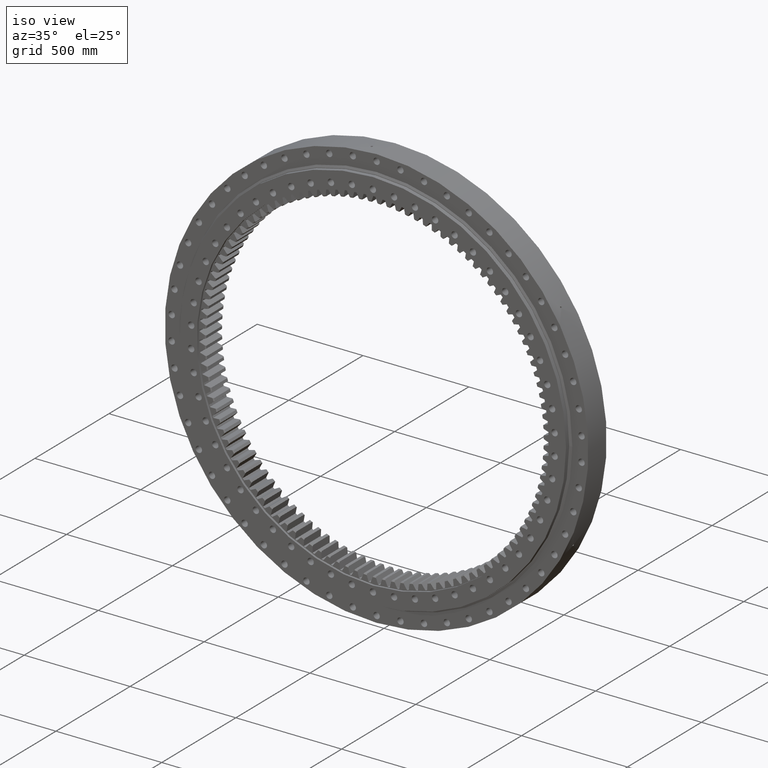
[diagram: clean part render]
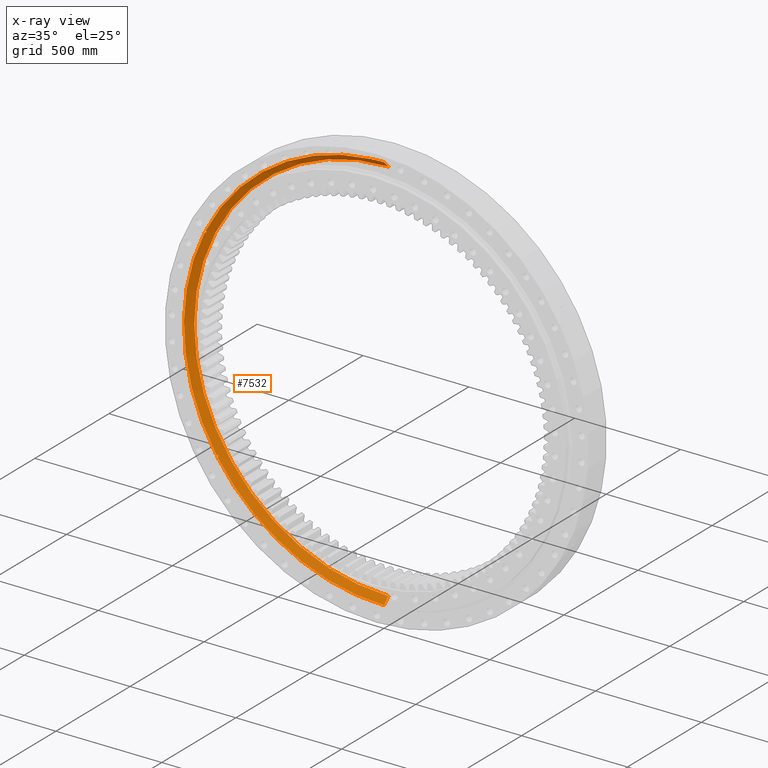
[diagram: x-ray — body ghosted, one internal face saturated and labeled with its STEP entity id]
A machine part, iso view, then the same camera in x-ray: the body is ghosted and one INTERNAL B-rep face — a face not visible from any outside direction — is saturated and labeled: STEP entity #7532.
In plain terms, the highlighted conical surface has half-angle 45 deg.
Its self-contained STEP definition (entity closure, byte-faithful):
#622 = CARTESIAN_POINT ( 'NONE',  ( -788.3514455370460600, 4.242434500541354400, -516.6760801266611900 ) ) ;
#731 = CARTESIAN_POINT ( 'NONE',  ( -786.5896001443550200, 3.381546626899522700, -520.9151389516931700 ) ) ;
#1027 = EDGE_CURVE ( 'NONE', #23381, #23658, #23923, .T. ) ;
#1183 = CARTESIAN_POINT ( 'NONE',  ( -52.07725758804964800, 3.554564166416114300, 941.8265897986447000 ) ) ;
#1619 = DIRECTION ( 'NONE',  ( 5.551115123125782700E-017, -3.495161445111331700E-017, 1.000000000000000000 ) ) ;
#1719 = CARTESIAN_POINT ( 'NONE',  ( -841.7936830436398200, 4.433292511311116800, 423.6457923903273600 ) ) ;
#1835 = CARTESIAN_POINT ( 'NONE',  ( -845.1540721684967800, 2.825469291682863200, 420.5233891742075800 ) ) ;
#2056 = CARTESIAN_POINT ( 'NONE',  ( -58.21801495067638400, 3.019071775043544700, 942.0034609562370600 ) ) ;
#2686 = DIRECTION ( 'NONE',  ( 1.222452380498864700E-016, -0.7071067811865465700, 0.7071067811865485700 ) ) ;
#3274 = CARTESIAN_POINT ( 'NONE',  ( -792.8989786270402600, 0.7071067740544021400, -516.1786974748498600 ) ) ;
#3382 = CARTESIAN_POINT ( 'NONE',  ( -787.7848599382309700, 4.433292511311160300, -517.1918180658963100 ) ) ;
#3507 = CARTESIAN_POINT ( 'NONE',  ( -786.7609739946410600, 2.825469291682844100, -521.6632020226832100 ) ) ;
#3589 = CARTESIAN_POINT ( 'NONE',  ( 5.243681215457027800E-014, 0.7071067811864668600, 946.1126983722081100 ) ) ;
#3974 = CARTESIAN_POINT ( 'NONE',  ( -52.74982545783829800, 4.004894589033563400, 941.3381354673820200 ) ) ;
#4104 = VERTEX_POINT ( 'NONE', #33308 ) ;
#4387 = CARTESIAN_POINT ( 'NONE',  ( -842.7798148625572600, 1.588334650350549100, 428.0008879357426400 ) ) ;
#4499 = FACE_OUTER_BOUND ( 'NONE', #24670, .T. ) ;
#4520 = CARTESIAN_POINT ( 'NONE',  ( -841.9529310191247800, 4.491578921852136500, 423.1994475757894600 ) ) ;
#4628 = CARTESIAN_POINT ( 'NONE',  ( -845.8770896712000000, 2.220631518000919500, 420.4278282392630200 ) ) ;
#4846 = CARTESIAN_POINT ( 'NONE',  ( -58.70304476714166200, 2.425631757804057800, 942.5679432726157100 ) ) ;
#5292 = DIRECTION ( 'NONE',  ( 5.551115123125782700E-017, -3.495161445111331700E-017, 1.000000000000000000 ) ) ;
#5409 = DIRECTION ( 'NONE',  ( 1.173697223544192200E-016, -1.000000000000000000, -3.494217355385783800E-017 ) ) ;
#5452 = CARTESIAN_POINT ( 'NONE',  ( -8.299292658278656600E-017, 0.7071067811864999400, 2.470784786932845900E-017 ) ) ;
#5667 = CIRCLE ( 'NONE', #27379, 946.1126983722081100 ) ;
#6067 = CARTESIAN_POINT ( 'NONE',  ( -792.0495492259274200, 1.588334650350467600, -515.8682854998512500 ) ) ;
#6193 = CARTESIAN_POINT ( 'NONE',  ( -787.4779379777353400, 4.491578921852170200, -517.5529032654363800 ) ) ;
#6303 = CARTESIAN_POINT ( 'NONE',  ( -787.0397245487211000, 2.220631518000865800, -522.3371340148771700 ) ) ;
#6644 = CARTESIAN_POINT ( 'NONE',  ( -50.57437559205796200, 0.7071067740545505800, 944.7600068631766100 ) ) ;
#6765 = CARTESIAN_POINT ( 'NONE',  ( -53.56002205403351000, 4.336157601730970000, 940.9605953438482400 ) ) ;
#7183 = CARTESIAN_POINT ( 'NONE',  ( -842.2279755009050200, 2.429004186097050200, 427.2306665963374100 ) ) ;
#7289 = CARTESIAN_POINT ( 'NONE',  ( -842.2276890863914800, 4.500182801229604100, 422.6332801871684500 ) ) ;
#7406 = CARTESIAN_POINT ( 'NONE',  ( -846.5738449810061200, 1.588185285283509200, 420.4468395707988300 ) ) ;
#7532 = ADVANCED_FACE ( 'NONE', ( #4499 ), #31948, .F. ) ;
#7603 = ORIENTED_EDGE ( 'NONE', *, *, #31084, .F. ) ;
#7624 = CARTESIAN_POINT ( 'NONE',  ( -59.07050953542872000, 1.801915122402393000, 943.1699200768581500 ) ) ;
#7668 = ORIENTED_EDGE ( 'NONE', *, *, #12828, .T. ) ;
#8044 = CARTESIAN_POINT ( 'NONE',  ( -56.03650281589644100, 4.337367784174946700, 940.8151501373440600 ) ) ;
#8301 = CARTESIAN_POINT ( 'NONE',  ( -843.4733542191015700, 0.7071067740544851900, 428.5813093883285800 ) ) ;
#8489 = CARTESIAN_POINT ( 'NONE',  ( -8.299292658278656600E-017, 0.7071067811864999400, 2.470784786932845900E-017 ) ) ;
#8719 = CIRCLE ( 'NONE', #27645, 946.1126983722081100 ) ;
#8804 = ORIENTED_EDGE ( 'NONE', *, *, #31426, .T. ) ;
#8852 = CARTESIAN_POINT ( 'NONE',  ( -791.1065982986394800, 2.429004186096974200, -515.7754892635547300 ) ) ;
#8966 = CARTESIAN_POINT ( 'NONE',  ( -787.1250016700290600, 4.500182801229645900, -518.0739344258945500 ) ) ;
#9083 = CARTESIAN_POINT ( 'NONE',  ( -787.4045664996937100, 1.588185285283439500, -522.9310361476228800 ) ) ;
#9460 = LINE ( 'NONE', #13643, #11155 ) ;
#9532 = CARTESIAN_POINT ( 'NONE',  ( -54.16420015922302900, 4.458422551205584800, 940.8035073108967500 ) ) ;
#9814 = EDGE_CURVE ( 'NONE', #4104, #29278, #8719, .T. ) ;
#9945 = CARTESIAN_POINT ( 'NONE',  ( -841.9044179888892400, 3.017700945961482100, 426.5669893576380200 ) ) ;
#10068 = CARTESIAN_POINT ( 'NONE',  ( -842.7880716921598600, 4.337367784174843700, 421.8785400908655000 ) ) ;
#10186 = CARTESIAN_POINT ( 'NONE',  ( -847.2470942377898400, 0.9303315634363801300, 420.5701591198013600 ) ) ;
#10210 = CIRCLE ( 'NONE', #16514, 917.2499999999998900 ) ;
#10248 = ORIENTED_EDGE ( 'NONE', *, *, #17793, .T. ) ;
#10393 = CARTESIAN_POINT ( 'NONE',  ( -59.33360321566827600, 1.152582910224052800, 943.8040175094956800 ) ) ;
#10597 = CARTESIAN_POINT ( 'NONE',  ( -8.299292658278656600E-017, 0.7071067811864999400, 2.470784786932845900E-017 ) ) ;
#10907 = CARTESIAN_POINT ( 'NONE',  ( -3.470599820928204600E-015, 29.56980515339465000, 1.033233263623675800E-015 ) ) ;
#11018 = DIRECTION ( 'NONE',  ( 1.173697223544192200E-016, -1.000000000000000000, -3.494217355385783800E-017 ) ) ;
#11132 = CARTESIAN_POINT ( 'NONE',  ( -8.299292658278656600E-017, 0.7071067811864999400, 2.470784786932845900E-017 ) ) ;
#11155 = VECTOR ( 'NONE', #2686, 1000.000000000000000 ) ;
#11177 = ORIENTED_EDGE ( 'NONE', *, *, #29727, .T. ) ;
#11234 = DIRECTION ( 'NONE',  ( 5.551115123125782700E-017, -3.495161445111331700E-017, 1.000000000000000000 ) ) ;
#11589 = CARTESIAN_POINT ( 'NONE',  ( -790.3700581940044000, 3.017700945961491400, -515.8271188579135500 ) ) ;
#11719 = CARTESIAN_POINT ( 'NONE',  ( -786.7515688762598500, 4.337367784174885400, -518.9366100464802700 ) ) ;
#11846 = CARTESIAN_POINT ( 'NONE',  ( -787.8479889903047700, 0.9303315634362920900, -523.4524273325753300 ) ) ;
#12004 = EDGE_CURVE ( 'NONE', #23502, #15637, #5667, .T. ) ;
#12168 = CARTESIAN_POINT ( 'NONE',  ( -51.00887076943260500, 2.220959040796031600, 943.2205924788380600 ) ) ;
#12295 = CARTESIAN_POINT ( 'NONE',  ( -54.63126275232109200, 4.499907430203514900, 940.7349464934543400 ) ) ;
#12310 = DIRECTION ( 'NONE',  ( 5.551115123125782700E-017, -3.495161445111331700E-017, 1.000000000000000000 ) ) ;
#12701 = CARTESIAN_POINT ( 'NONE',  ( -841.6843815193180900, 3.554564166416004600, 425.8130668686437200 ) ) ;
#12805 = CARTESIAN_POINT ( 'NONE',  ( -843.4562366129353000, 4.006216373964449000, 421.2826994132009900 ) ) ;
#12828 = EDGE_CURVE ( 'NONE', #28518, #23658, #27039, .T. ) ;
#13022 = CARTESIAN_POINT ( 'NONE',  ( -56.33409009353195500, 4.241889583455376000, 940.8930172620512200 ) ) ;
#13146 = CARTESIAN_POINT ( 'NONE',  ( -59.44753258883900300, 0.7071067740545642400, 944.2432043195942700 ) ) ;
#13538 = B_SPLINE_CURVE_WITH_KNOTS ( 'NONE', 3,
 ( #3274, #19721, #6067, #25198, #8852, #27972, #11589, #30764, #14338, #33523, #17108, #622, #19841, #3382, #22615, #6193, #25314, #8966, #28094, #11719, #30874, #14452, #33655, #17223, #731, #19968, #3507, #22718, #6303, #25440, #9083, #28217, #11846, #30994 ),
 .UNSPECIFIED., .F., .F.,
 ( 4, 2, 2, 2, 2, 2, 2, 2, 2, 2, 2, 2, 2, 2, 2, 2, 4 ),
 ( 2.819181157725439300E-007, 0.001887956942167627600, 0.002831794454193555500, 0.003775631966219482700, 0.004719469478245409900, 0.005663306990271337900, 0.006607144502297265100, 0.007079063258309999300, 0.007550982014322734300, 0.008494819526348482800, 0.009438657038374230500, 0.01038249455039998000, 0.01132633206242572600, 0.01227016957445147500, 0.01321400708647722500, 0.01415784459850297000, 0.01510168211052871800 ),
 .UNSPECIFIED. ) ;
#13643 = CARTESIAN_POINT ( 'NONE',  ( 5.243681215457027800E-014, 0.7071067811864668600, 946.1126983722081100 ) ) ;
#13649 = DIRECTION ( 'NONE',  ( 5.551115123125782700E-017, -3.404199789324887300E-017, 1.000000000000000000 ) ) ;
#14338 = CARTESIAN_POINT ( 'NONE',  ( -789.6071239312650500, 3.554564166416029000, -516.0135229300029800 ) ) ;
#14452 = CARTESIAN_POINT ( 'NONE',  ( -786.5696381731822800, 4.006216373964497800, -519.8131781806217800 ) ) ;
#14792 = CARTESIAN_POINT ( 'NONE',  ( -50.61934310020063800, 1.153477579637105300, 944.3105897753351900 ) ) ;
#14907 = CARTESIAN_POINT ( 'NONE',  ( -51.38393896682256900, 2.826721079945987600, 942.5935782933198700 ) ) ;
#15332 = CARTESIAN_POINT ( 'NONE',  ( -843.1066313582073200, 1.153477579637018200, 428.3176578400111800 ) ) ;
#15436 = CARTESIAN_POINT ( 'NONE',  ( -841.5976515947503500, 4.004894589033487100, 424.9863788420060500 ) ) ;
#15448 = CARTESIAN_POINT ( 'NONE',  ( -1.680323095672823500E-013, 29.56980515339467900, -917.2499999999998900 ) ) ;
#15557 = CARTESIAN_POINT ( 'NONE',  ( -844.1776030592209300, 3.551892162688689700, 420.8545854100087800 ) ) ;
#15637 = VERTEX_POINT ( 'NONE', #8301 ) ;
#15791 = CARTESIAN_POINT ( 'NONE',  ( -57.14421389644606100, 3.865548752889614600, 941.2211856793211400 ) ) ;
#15852 = CARTESIAN_POINT ( 'NONE',  ( -1.684681867771548600E-013, 0.7071067811865330300, -946.1126983722081100 ) ) ;
#16514 = AXIS2_PLACEMENT_3D ( 'NONE', #10907, #30055, #13649 ) ;
#17051 = DIRECTION ( 'NONE',  ( -4.285499050785186000E-017, -0.7071067811865465700, -0.7071067811865485700 ) ) ;
#17108 = CARTESIAN_POINT ( 'NONE',  ( -788.8478261369086800, 4.004894589033510100, -516.3517566253779000 ) ) ;
#17223 = CARTESIAN_POINT ( 'NONE',  ( -786.5595637938446300, 3.551892162688729200, -520.6519568501388400 ) ) ;
#17519 = VECTOR ( 'NONE', #17051, 1000.000000000000000 ) ;
#17681 = CARTESIAN_POINT ( 'NONE',  ( -51.88013185167413600, 3.381138333320751400, 942.0111482900624700 ) ) ;
#17701 = CARTESIAN_POINT ( 'NONE',  ( -788.0148359971669800, 0.7071067740544281200, -523.6046755740387700 ) ) ;
#17793 = EDGE_CURVE ( 'NONE', #21047, #23216, #31983, .T. ) ;
#18038 = AXIS2_PLACEMENT_3D ( 'NONE', #11132, #11018, #12310 ) ;
#18080 = CARTESIAN_POINT ( 'NONE',  ( 4.744700364594303100E-014, 29.56980515339461800, 917.2499999999998900 ) ) ;
#18200 = CARTESIAN_POINT ( 'NONE',  ( -841.6757905549193300, 4.336157601730895400, 424.0959579458743200 ) ) ;
#18317 = CARTESIAN_POINT ( 'NONE',  ( -844.9079351163031800, 3.019071775043461200, 420.5834505729285400 ) ) ;
#18422 = EDGE_CURVE ( 'NONE', #23216, #23502, #20454, .T. ) ;
#18532 = CARTESIAN_POINT ( 'NONE',  ( -57.83094347588519200, 3.381546626899605700, 941.6641455535020700 ) ) ;
#19623 = CARTESIAN_POINT ( 'NONE',  ( -1.684681867771548600E-013, 0.7071067811865330300, -946.1126983722081100 ) ) ;
#19721 = CARTESIAN_POINT ( 'NONE',  ( -792.4872882580031000, 1.153477579636984100, -515.9929319353256000 ) ) ;
#19841 = CARTESIAN_POINT ( 'NONE',  ( -788.1157685008828400, 4.336157601730941600, -516.8646373979754600 ) ) ;
#19968 = CARTESIAN_POINT ( 'NONE',  ( -786.6899201656234500, 3.019071775043453700, -521.4200103833104500 ) ) ;
#20370 = CARTESIAN_POINT ( 'NONE',  ( -50.57437559205796200, 0.7071067740545505800, 944.7600068631766100 ) ) ;
#20422 = CARTESIAN_POINT ( 'NONE',  ( -52.51166451231129200, 3.865632092701798900, 941.4909180327418900 ) ) ;
#20454 = B_SPLINE_CURVE_WITH_KNOTS ( 'NONE', 3,
 ( #6644, #14792, #28556, #12168, #31329, #14907, #34121, #17681, #1183, #20422, #3974, #23180, #6765, #25901, #9532, #28676, #12295, #31444, #28899, #8044, #13022, #32171, #15791, #34994, #18532, #2056, #21274, #4846, #24018, #7624, #26776, #10393, #29546, #13146 ),
 .UNSPECIFIED., .F., .F.,
 ( 4, 2, 2, 2, 2, 2, 2, 2, 2, 2, 2, 2, 2, 2, 2, 2, 4 ),
 ( 2.819181157785080000E-007, 0.001887956942167267300, 0.002831794454193014300, 0.003775631966218761000, 0.004719469478244507800, 0.005663306990270253700, 0.006607144502296001400, 0.007079063258308917700, 0.007550982014321834000, 0.008494819526347667500, 0.009438657038373496700, 0.01038249455039932800, 0.01132633206242515700, 0.01227016957445098800, 0.01321400708647681700, 0.01415784459850264600, 0.01510168211052847700 ),
 .UNSPECIFIED. ) ;
#20713 = CARTESIAN_POINT ( 'NONE',  ( -843.4733542191015700, 0.7071067740544851900, 428.5813093883285800 ) ) ;
#20938 = CARTESIAN_POINT ( 'NONE',  ( -841.8418373803479000, 4.458422551205516400, 423.4941803418940900 ) ) ;
#21047 = VERTEX_POINT ( 'NONE', #3589 ) ;
#21049 = CARTESIAN_POINT ( 'NONE',  ( -845.6393060505063200, 2.425631757804006700, 420.4456435884660000 ) ) ;
#21274 = CARTESIAN_POINT ( 'NONE',  ( -58.39309817385262100, 2.825469291682917800, 942.1865911968889100 ) ) ;
#22615 = CARTESIAN_POINT ( 'NONE',  ( -787.6776372211215900, 4.458422551205542200, -517.3093269690042500 ) ) ;
#22718 = CARTESIAN_POINT ( 'NONE',  ( -786.9362612833613200, 2.425631757803974300, -522.1222996841513600 ) ) ;
#23180 = CARTESIAN_POINT ( 'NONE',  ( -53.27888814892541800, 4.242434500541401500, 941.0704190085974700 ) ) ;
#23216 = VERTEX_POINT ( 'NONE', #20370 ) ;
#23381 = VERTEX_POINT ( 'NONE', #15448 ) ;
#23502 = VERTEX_POINT ( 'NONE', #24295 ) ;
#23543 = ORIENTED_EDGE ( 'NONE', *, *, #9814, .T. ) ;
#23571 = EDGE_CURVE ( 'NONE', #25469, #21047, #9460, .T. ) ;
#23575 = CARTESIAN_POINT ( 'NONE',  ( -842.3574298440007600, 2.220959040795967600, 427.4353183347311600 ) ) ;
#23658 = VERTEX_POINT ( 'NONE', #19623 ) ;
#23695 = CARTESIAN_POINT ( 'NONE',  ( -842.0159932672876300, 4.499907430203443900, 423.0554118623925300 ) ) ;
#23817 = CARTESIAN_POINT ( 'NONE',  ( -846.3443656396132200, 1.801915122402329800, 420.4283981662550200 ) ) ;
#23923 = LINE ( 'NONE', #15852, #17519 ) ;
#24018 = CARTESIAN_POINT ( 'NONE',  ( -58.83736512247555300, 2.220631518000983900, 942.7649622541386000 ) ) ;
#24295 = CARTESIAN_POINT ( 'NONE',  ( -59.44753258883900300, 0.7071067740545642400, 944.2432043195942700 ) ) ;
#24510 = ORIENTED_EDGE ( 'NONE', *, *, #12004, .T. ) ;
#24670 = EDGE_LOOP ( 'NONE', ( #29466, #7603, #32671, #10248, #28381, #24510, #8804, #23543, #11177, #7668 ) ) ;
#25198 = CARTESIAN_POINT ( 'NONE',  ( -791.3485590745649500, 2.220959040795898800, -515.7852741441088300 ) ) ;
#25314 = CARTESIAN_POINT ( 'NONE',  ( -787.3847305149630500, 4.499907430203484700, -517.6795346310635800 ) ) ;
#25440 = CARTESIAN_POINT ( 'NONE',  ( -787.2738561041812800, 1.801915122402264000, -522.7415219106051200 ) ) ;
#25469 = VERTEX_POINT ( 'NONE', #18080 ) ;
#25901 = CARTESIAN_POINT ( 'NONE',  ( -54.00882310540609400, 4.433292511311190500, 940.8376104562219100 ) ) ;
#26269 = B_SPLINE_CURVE_WITH_KNOTS ( 'NONE', 3,
 ( #20713, #15332, #4387, #23575, #7183, #26326, #9945, #29092, #12701, #31844, #15436, #34649, #18200, #1719, #20938, #4520, #23695, #7289, #26433, #10068, #29206, #12805, #31964, #15557, #34758, #18317, #1835, #21049, #4628, #23817, #7406, #26535, #10186, #29326 ),
 .UNSPECIFIED., .F., .F.,
 ( 4, 2, 2, 2, 2, 2, 2, 2, 2, 2, 2, 2, 2, 2, 2, 2, 4 ),
 ( 2.819181158761699400E-007, 0.001887956942167491300, 0.002831794454193372500, 0.003775631966219252800, 0.004719469478245133200, 0.005663306990271015300, 0.006607144502296896500, 0.007079063258309837100, 0.007550982014322778600, 0.008494819526348510600, 0.009438657038374242600, 0.01038249455039997500, 0.01132633206242570800, 0.01227016957445143900, 0.01321400708647717100, 0.01415784459850290500, 0.01510168211052863800 ),
 .UNSPECIFIED. ) ;
#26326 = CARTESIAN_POINT ( 'NONE',  ( -842.0019537295033800, 2.826721079945955700, 426.7969926548805700 ) ) ;
#26433 = CARTESIAN_POINT ( 'NONE',  ( -842.4018581145738800, 4.466046800975488100, 422.3621750966901200 ) ) ;
#26535 = CARTESIAN_POINT ( 'NONE',  ( -847.0250569648712800, 1.152582910223941800, 420.5176010719110300 ) ) ;
#26776 = CARTESIAN_POINT ( 'NONE',  ( -59.16927848130871600, 1.588185285283618700, 943.3778757184196600 ) ) ;
#27039 = CIRCLE ( 'NONE', #18038, 946.1126983722081100 ) ;
#27379 = AXIS2_PLACEMENT_3D ( 'NONE', #32185, #34658, #1619 ) ;
#27630 = DIRECTION ( 'NONE',  ( 1.173697223544192200E-016, -1.000000000000000000, -3.494217355385783800E-017 ) ) ;
#27645 = AXIS2_PLACEMENT_3D ( 'NONE', #5452, #5409, #5292 ) ;
#27972 = CARTESIAN_POINT ( 'NONE',  ( -790.6180147626777200, 2.826721079945891300, -515.7965856384412300 ) ) ;
#28094 = CARTESIAN_POINT ( 'NONE',  ( -786.9773022886704400, 4.466046800975528100, -518.3603217740920900 ) ) ;
#28217 = CARTESIAN_POINT ( 'NONE',  ( -787.6914537491997000, 1.152582910223862700, -523.2864164375860100 ) ) ;
#28381 = ORIENTED_EDGE ( 'NONE', *, *, #18422, .T. ) ;
#28518 = VERTEX_POINT ( 'NONE', #17701 ) ;
#28556 = CARTESIAN_POINT ( 'NONE',  ( -50.73026563662668300, 1.588334650350617900, 943.8691734355920700 ) ) ;
#28676 = CARTESIAN_POINT ( 'NONE',  ( -54.47499304138582900, 4.491578921852206600, 940.7523508412240300 ) ) ;
#28899 = CARTESIAN_POINT ( 'NONE',  ( -55.42455582589985100, 4.466046800975571600, 940.7224968707801100 ) ) ;
#29092 = CARTESIAN_POINT ( 'NONE',  ( -841.7456509931820400, 3.381138333320737200, 426.0760620097932500 ) ) ;
#29206 = CARTESIAN_POINT ( 'NONE',  ( -843.0043002390939400, 4.241889583455308500, 421.6597555109438000 ) ) ;
#29278 = VERTEX_POINT ( 'NONE', #34191 ) ;
#29326 = CARTESIAN_POINT ( 'NONE',  ( -847.4623685860093500, 0.7071067740544262300, 420.6385287455573200 ) ) ;
#29466 = ORIENTED_EDGE ( 'NONE', *, *, #1027, .F. ) ;
#29546 = CARTESIAN_POINT ( 'NONE',  ( -59.39910524748116700, 0.9303315634364697200, 944.0225864523749800 ) ) ;
#29727 = EDGE_CURVE ( 'NONE', #29278, #28518, #13538, .T. ) ;
#30055 = DIRECTION ( 'NONE',  ( 1.173697223544192200E-016, -1.000000000000000000, -3.494217355385783800E-017 ) ) ;
#30764 = CARTESIAN_POINT ( 'NONE',  ( -789.8655191415048200, 3.381138333320755000, -515.9350862802710900 ) ) ;
#30874 = CARTESIAN_POINT ( 'NONE',  ( -786.6702101455582600, 4.241889583455364500, -519.2332617511093500 ) ) ;
#30994 = CARTESIAN_POINT ( 'NONE',  ( -788.0148359971669800, 0.7071067740544281200, -523.6046755740387700 ) ) ;
#31084 = EDGE_CURVE ( 'NONE', #25469, #23381, #10210, .T. ) ;
#31329 = CARTESIAN_POINT ( 'NONE',  ( -51.12137720226240100, 2.429004186097082100, 943.0061558598904400 ) ) ;
#31426 = EDGE_CURVE ( 'NONE', #15637, #4104, #26269, .T. ) ;
#31444 = CARTESIAN_POINT ( 'NONE',  ( -55.10268741635904600, 4.500182801229685800, 940.7072146130611800 ) ) ;
#31844 = CARTESIAN_POINT ( 'NONE',  ( -841.6108847048437800, 3.865632092701696700, 425.2690235537018000 ) ) ;
#31933 = DIRECTION ( 'NONE',  ( 5.551115123125782700E-017, -3.495161445111331700E-017, 1.000000000000000000 ) ) ;
#31948 = CONICAL_SURFACE ( 'NONE', #33578, 946.1126983722081100, 0.7853981633974497200 ) ;
#31964 = CARTESIAN_POINT ( 'NONE',  ( -843.6935643266259600, 3.865548752889542200, 421.1222519260445600 ) ) ;
#31983 = CIRCLE ( 'NONE', #33616, 946.1126983722081100 ) ;
#32037 = DIRECTION ( 'NONE',  ( 1.173697223544192200E-016, -1.000000000000000000, -3.494217355385783800E-017 ) ) ;
#32171 = CARTESIAN_POINT ( 'NONE',  ( -56.88659843974984700, 4.006216373964517400, 941.0958775938212300 ) ) ;
#32185 = CARTESIAN_POINT ( 'NONE',  ( -8.299292658278656600E-017, 0.7071067811864999400, 2.470784786932845900E-017 ) ) ;
#32671 = ORIENTED_EDGE ( 'NONE', *, *, #23571, .T. ) ;
#33308 = CARTESIAN_POINT ( 'NONE',  ( -847.4623685860093500, 0.7071067740544262300, 420.6385287455573200 ) ) ;
#33523 = CARTESIAN_POINT ( 'NONE',  ( -789.0992201925290600, 3.865632092701730900, -516.2218944790417900 ) ) ;
#33578 = AXIS2_PLACEMENT_3D ( 'NONE', #10597, #32037, #31933 ) ;
#33616 = AXIS2_PLACEMENT_3D ( 'NONE', #8489, #27630, #11234 ) ;
#33655 = CARTESIAN_POINT ( 'NONE',  ( -786.5493504301766700, 3.865548752889587500, -520.0989337532781700 ) ) ;
#34121 = CARTESIAN_POINT ( 'NONE',  ( -51.53435979488161000, 3.017700945961493200, 942.3941082155498600 ) ) ;
#34191 = CARTESIAN_POINT ( 'NONE',  ( -792.8989786270402600, 0.7071067740544021400, -516.1786974748498600 ) ) ;
#34649 = CARTESIAN_POINT ( 'NONE',  ( -841.6303336859746200, 4.242434500541325100, 424.3943388819375900 ) ) ;
#34658 = DIRECTION ( 'NONE',  ( 1.173697223544192200E-016, -1.000000000000000000, -3.494217355385783800E-017 ) ) ;
#34758 = CARTESIAN_POINT ( 'NONE',  ( -844.4205436202436200, 3.381546626899523100, 420.7490066018107200 ) ) ;
#34994 = CARTESIAN_POINT ( 'NONE',  ( -57.61803926537306400, 3.551892162688761200, 941.5065422601458100 ) ) ;